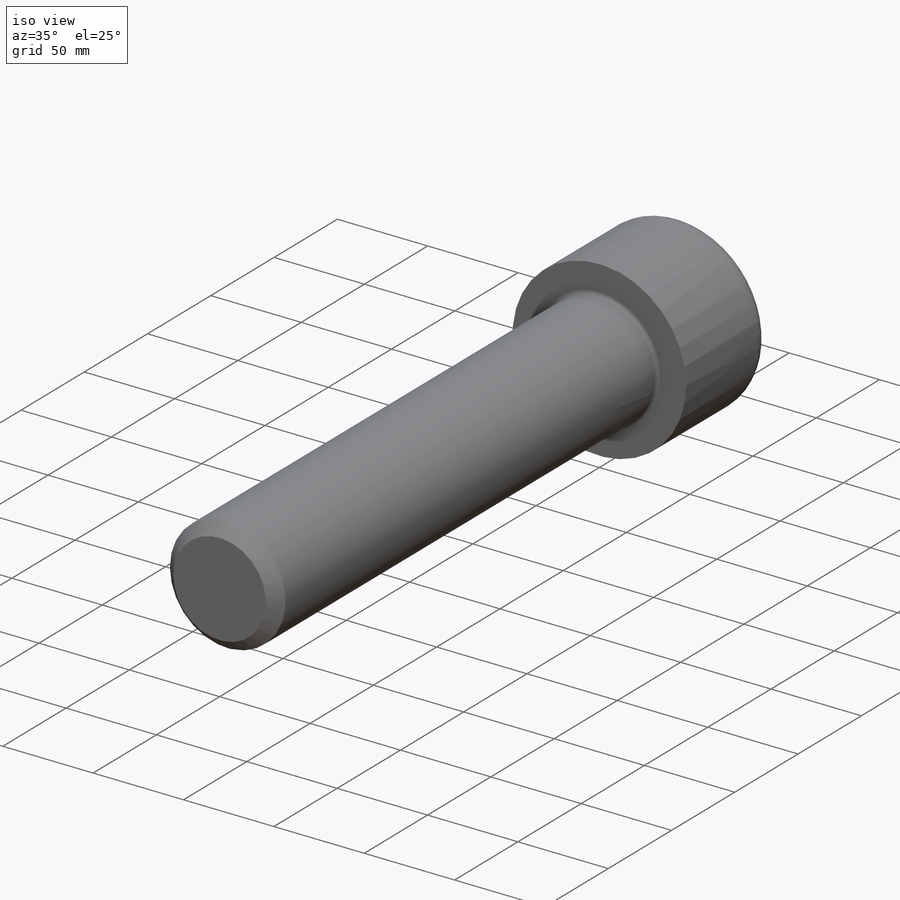
[diagram: iso view]
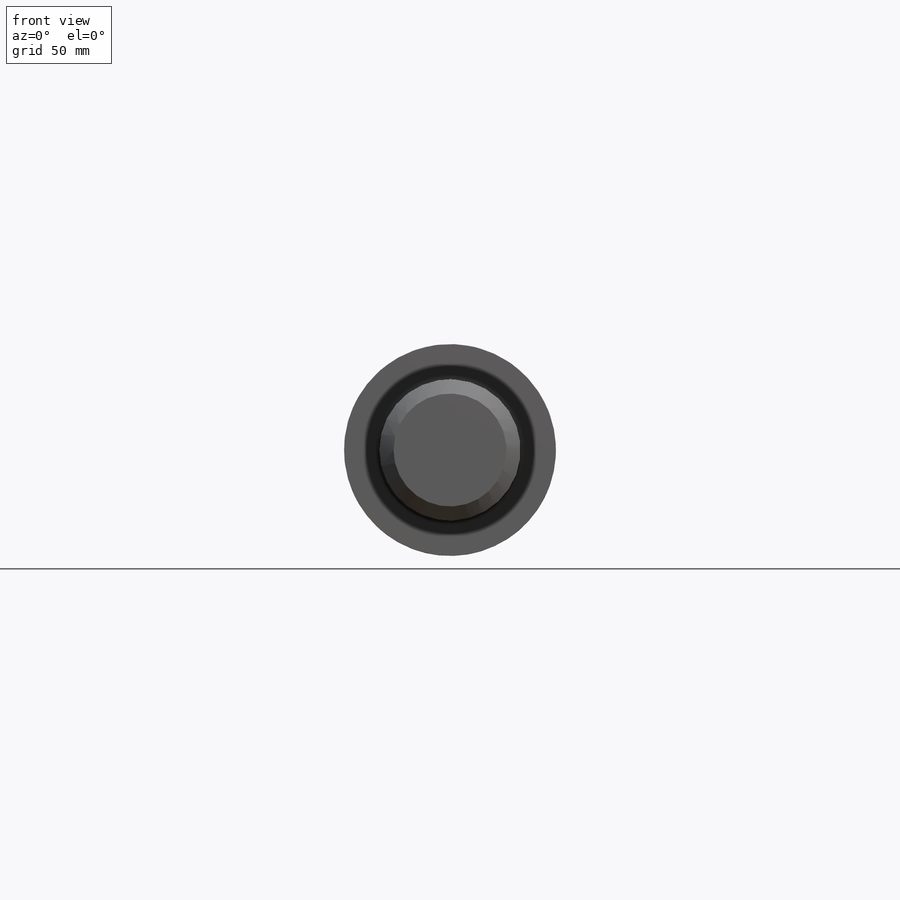
[diagram: front view]
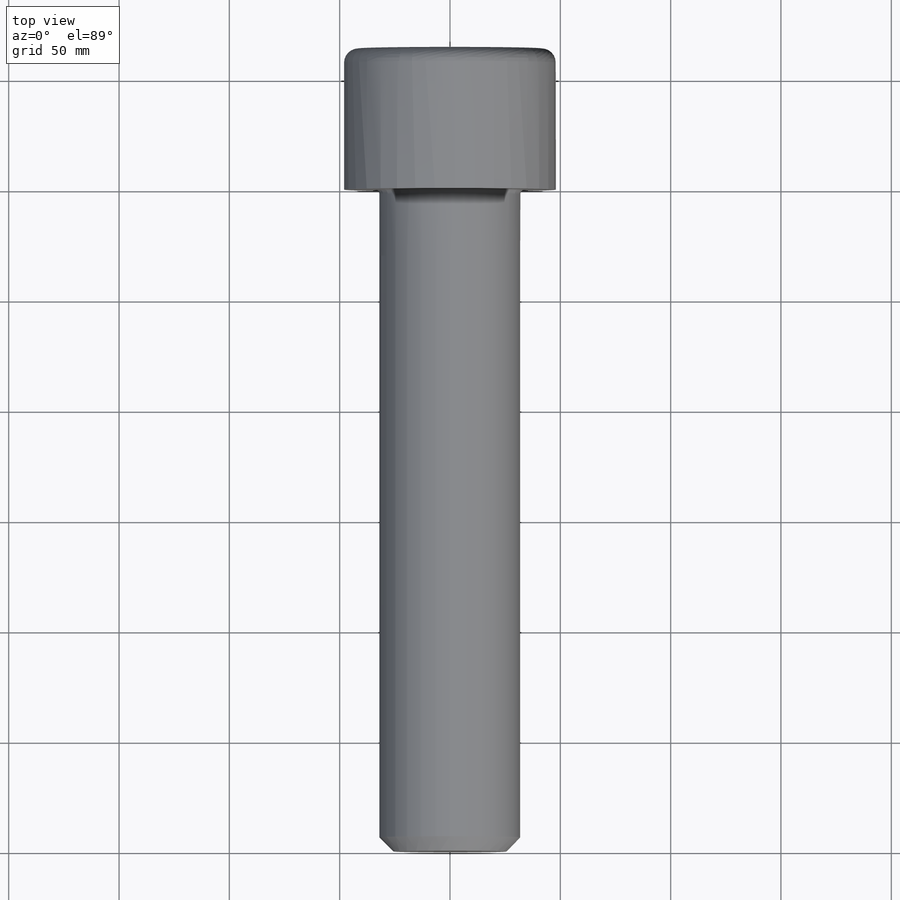
[diagram: top view]
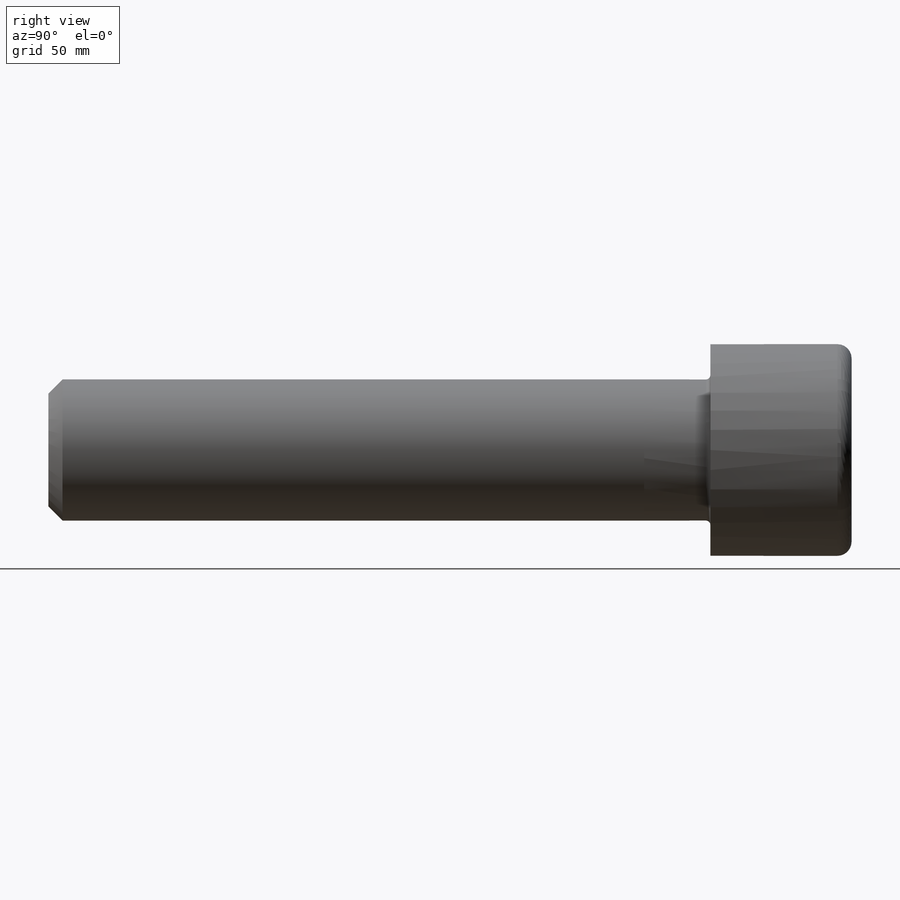
[diagram: right view]
SOLIDWORKS PART (.sldprt)
format: sldprt  version: not decoded by parser v0  size: 4,331,008 bytes
history: native  units: mm
features: sketch x5, extrude x2, fillet x2, material x1, chamfer x1, cut_extrude x1, plane x1 + 1 further entry (+13 scaffold rows collapsed)
feature tree (27):
  scaffold x13  (default folders/planes/origin — collapsed)
  material  "Alloy Steel"
  "Design Table"
  sketch  "Sketch2"  dims[NOM_DIAM=10.0mm]
  extrude  "Boss-Extrude1"  Depth=100mm LENGTH=100mm
  sketch  "Sketch3"  dims[HEAD_DIAM=16.0mm]
  extrude  "Boss-Extrude2"  Depth=10mm HEAD_HEIGTH=10mm
  fillet  "Fillet1"  Radius=1mm
  chamfer  "Chamfer1"  Distance=1mm Angle=45deg
  sketch  "Sketch4"  dims[D1=~1.01053mm]
  cut_extrude  "Cut-Extrude1"  Depth=0.666667mm
  plane  "Plane1"  Offset=0.266667mm
  sketch  "Sketch5"
  sketch  "Sketch7"  dims[D1=10.0mm]
  fillet  "Fillet2"  Radius=0.4mm HEAD_FILLET=0.4mm
decode coverage: 10 of 11 modeling features carry decoded parameters; 1 rows unclassified (native names shown)
note: ~ marks probable driven/reference dimensions
note: suppression state not decoded; provenance and decode notes live in map.json
